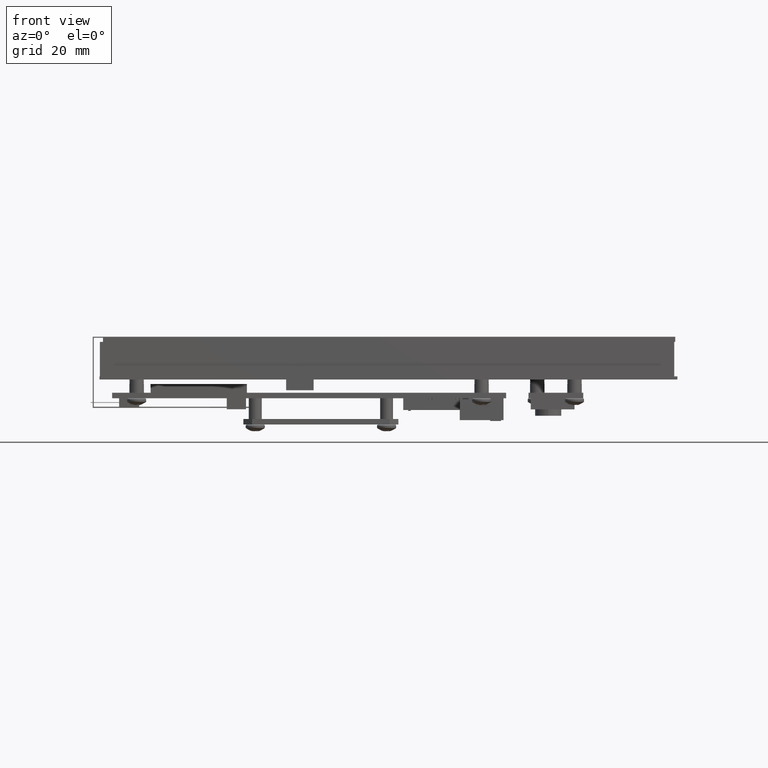
[diagram: clean part render]
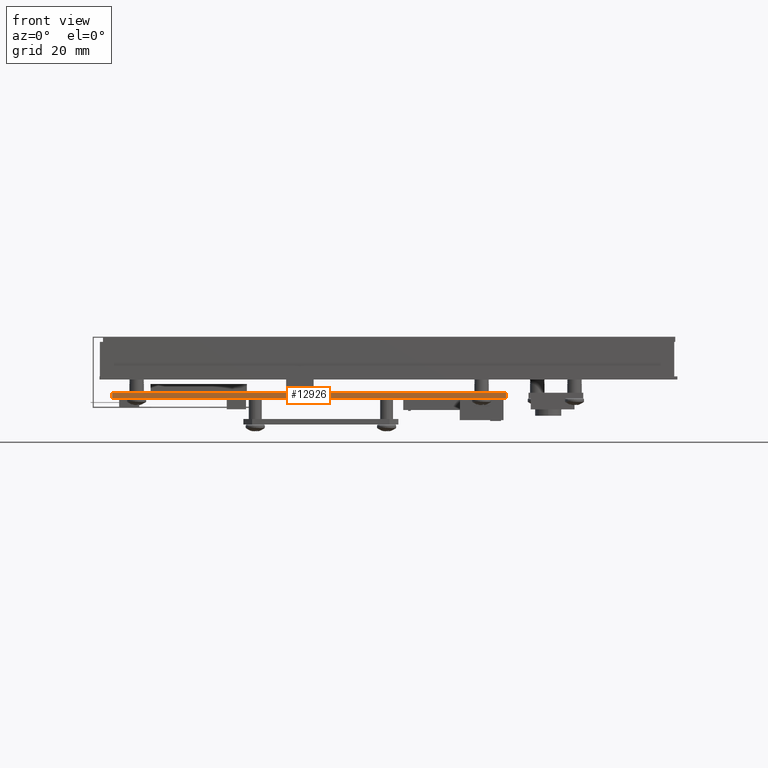
[diagram: same view with one face highlighted and labeled with its STEP entity id]
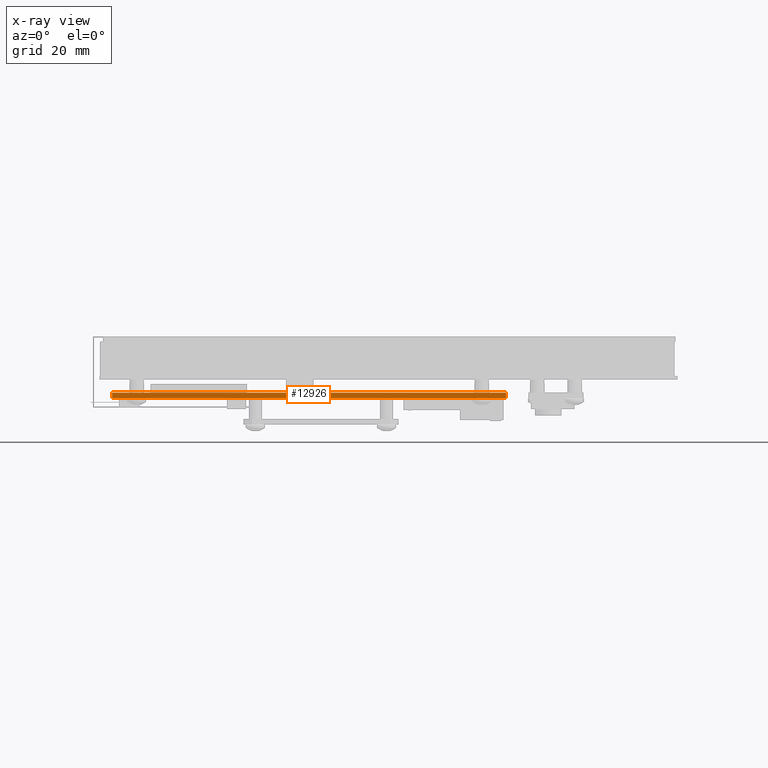
[diagram: x-ray of the same camera — body ghosted, the highlighted face saturated]
A machine part, front view. The second image highlights one B-rep face of the part: STEP entity #12926.
The next image is the same camera in x-ray: the body ghosted, the highlighted face saturated — about 0% of this face is hidden behind the body in this view.
In plain terms, the highlighted planar face has unit normal (-0, 1, 0).
Its self-contained STEP definition (entity closure, byte-faithful):
#796 = AXIS2_PLACEMENT_3D ( 'NONE', #1638, #1650, #1651 ) ;
#1638 = CARTESIAN_POINT ( 'NONE',  ( -2.249999999999996000, 0.06300000000000001400, 1.499999999999994900 ) ) ;
#1647 = FACE_OUTER_BOUND ( 'NONE', #10993, .T. ) ;
#1648 = PLANE ( 'NONE',  #796 ) ;
#1650 = DIRECTION ( 'NONE',  ( -1.137174657178532600E-030, 4.930380657631339100E-032, -1.000000000000000000 ) ) ;
#1651 = DIRECTION ( 'NONE',  ( -1.000000000000000000, -1.972152263052532600E-031, 1.137174657178532600E-030 ) ) ;
#10289 = VECTOR ( 'NONE', #17419, 39.37007874015748100 ) ;
#10300 = VECTOR ( 'NONE', #16775, 39.37007874015748100 ) ;
#10386 = VECTOR ( 'NONE', #17413, 39.37007874015748100 ) ;
#10399 = VECTOR ( 'NONE', #17378, 39.37007874015748100 ) ;
#10827 = EDGE_CURVE ( 'NONE', #11121, #11123, #16769, .T. ) ;
#10902 = EDGE_CURVE ( 'NONE', #11183, #11184, #17368, .T. ) ;
#10914 = EDGE_CURVE ( 'NONE', #11121, #11183, #17404, .T. ) ;
#10916 = EDGE_CURVE ( 'NONE', #11123, #11184, #17417, .T. ) ;
#10993 = EDGE_LOOP ( 'NONE', ( #11399, #11400, #11401, #11402 ) ) ;
#11121 = VERTEX_POINT ( 'NONE', #17565 ) ;
#11123 = VERTEX_POINT ( 'NONE', #17567 ) ;
#11183 = VERTEX_POINT ( 'NONE', #17627 ) ;
#11184 = VERTEX_POINT ( 'NONE', #17628 ) ;
#11399 = ORIENTED_EDGE ( 'NONE', *, *, #10902, .T. ) ;
#11400 = ORIENTED_EDGE ( 'NONE', *, *, #10916, .F. ) ;
#11401 = ORIENTED_EDGE ( 'NONE', *, *, #10827, .F. ) ;
#11402 = ORIENTED_EDGE ( 'NONE', *, *, #10914, .T. ) ;
#12926 = ADVANCED_FACE ( 'NONE', ( #1647 ), #1648, .F. ) ;
#16769 = LINE ( 'NONE', #16774, #10300 ) ;
#16774 = CARTESIAN_POINT ( 'NONE',  ( -2.249999999999996000, 0.06300000000000001400, 1.499999999999994900 ) ) ;
#16775 = DIRECTION ( 'NONE',  ( 1.000000000000000000, 1.972152263052532600E-031, -1.137174657178532600E-030 ) ) ;
#17368 = LINE ( 'NONE', #17376, #10399 ) ;
#17376 = CARTESIAN_POINT ( 'NONE',  ( -2.249999999999996000, 2.390366994456230100E-016, 1.499999999999994900 ) ) ;
#17378 = DIRECTION ( 'NONE',  ( 1.000000000000000000, 1.972152263052532600E-031, -1.137174657178532600E-030 ) ) ;
#17404 = LINE ( 'NONE', #17412, #10386 ) ;
#17412 = CARTESIAN_POINT ( 'NONE',  ( -2.249999999999996000, 0.06300000000000001400, 1.499999999999994900 ) ) ;
#17413 = DIRECTION ( 'NONE',  ( -4.930380657631331700E-031, -1.000000000000000000, -4.930380657631331400E-032 ) ) ;
#17417 = LINE ( 'NONE', #17418, #10289 ) ;
#17418 = CARTESIAN_POINT ( 'NONE',  ( 2.249999999999993300, 0.06300000000000001400, 1.499999999999996700 ) ) ;
#17419 = DIRECTION ( 'NONE',  ( -4.930380657631331700E-031, -1.000000000000000000, -4.930380657631331400E-032 ) ) ;
#17565 = CARTESIAN_POINT ( 'NONE',  ( -2.249999999999996000, 0.06300000000000001400, 1.499999999999994900 ) ) ;
#17567 = CARTESIAN_POINT ( 'NONE',  ( 2.249999999999993300, 0.06300000000000001400, 1.499999999999996700 ) ) ;
#17627 = CARTESIAN_POINT ( 'NONE',  ( -2.249999999999996000, 2.390366994456230100E-016, 1.499999999999994900 ) ) ;
#17628 = CARTESIAN_POINT ( 'NONE',  ( 2.249999999999993300, 2.390366994456230100E-016, 1.499999999999996700 ) ) ;